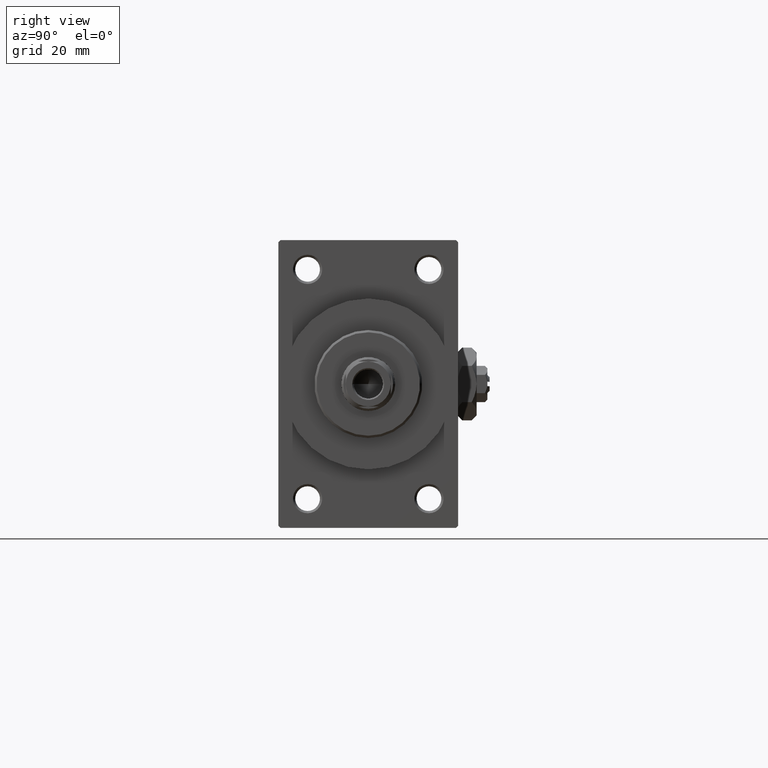
[diagram: clean part render]
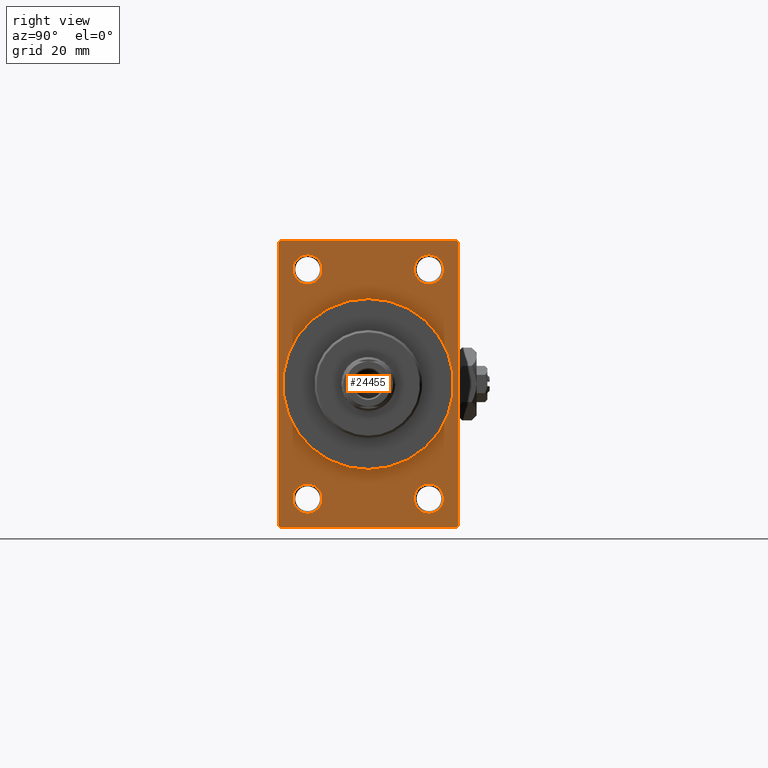
[diagram: same view with one face highlighted and labeled with its STEP entity id]
A machine part, right view. The second image highlights one B-rep face of the part: STEP entity #24455.
In plain terms, the highlighted planar face has unit normal (-1, 0, 0).
Its self-contained STEP definition (entity closure, byte-faithful):
#93 = CARTESIAN_POINT ( 'NONE',  ( 109.0000000000000142, 19.49999999999998579, -32.00000000000000000 ) ) ;
#233 = DIRECTION ( 'NONE',  ( 0.000000000000000000, 0.000000000000000000, -1.000000000000000000 ) ) ;
#847 = AXIS2_PLACEMENT_3D ( 'NONE', #28082, #20176, #4635 ) ;
#910 = ORIENTED_EDGE ( 'NONE', *, *, #6485, .T. ) ;
#1444 = FACE_BOUND ( 'NONE', #31148, .T. ) ;
#1781 = CARTESIAN_POINT ( 'NONE',  ( 109.0000000000000142, 13.49999999999999822, 28.74999999999996803 ) ) ;
#2174 = VERTEX_POINT ( 'NONE', #44598 ) ;
#2771 = AXIS2_PLACEMENT_3D ( 'NONE', #8393, #18525, #30347 ) ;
#2773 = EDGE_CURVE ( 'NONE', #8774, #26428, #27390, .T. ) ;
#3273 = DIRECTION ( 'NONE',  ( -1.000000000000000000, -0.000000000000000000, -0.000000000000000000 ) ) ;
#4097 = ORIENTED_EDGE ( 'NONE', *, *, #9370, .T. ) ;
#4564 = DIRECTION ( 'NONE',  ( 0.000000000000000000, 0.000000000000000000, 1.000000000000000000 ) ) ;
#4635 = DIRECTION ( 'NONE',  ( 0.000000000000000000, 0.000000000000000000, 1.000000000000000000 ) ) ;
#5067 = ORIENTED_EDGE ( 'NONE', *, *, #36040, .T. ) ;
#5396 = ORIENTED_EDGE ( 'NONE', *, *, #31064, .T. ) ;
#5425 = CIRCLE ( 'NONE', #36137, 3.250000000000002665 ) ;
#5559 = LINE ( 'NONE', #31947, #18130 ) ;
#6288 = DIRECTION ( 'NONE',  ( -0.000000000000000000, 0.7071067811865474617, 0.7071067811865474617 ) ) ;
#6423 = ORIENTED_EDGE ( 'NONE', *, *, #33546, .T. ) ;
#6485 = EDGE_CURVE ( 'NONE', #41729, #14216, #40122, .T. ) ;
#6873 = CARTESIAN_POINT ( 'NONE',  ( 109.0000000000000142, -19.49999999999998579, 31.99999999999999289 ) ) ;
#7139 = AXIS2_PLACEMENT_3D ( 'NONE', #27842, #42896, #9092 ) ;
#7163 = CARTESIAN_POINT ( 'NONE',  ( 109.0000000000000142, 0.000000000000000000, 0.000000000000000000 ) ) ;
#7393 = CARTESIAN_POINT ( 'NONE',  ( 109.0000000000000142, 20.00000000000000000, -31.49999999999998579 ) ) ;
#8144 = CARTESIAN_POINT ( 'NONE',  ( 109.0000000000000142, -13.50000000000000178, 25.50000000000000355 ) ) ;
#8262 = CARTESIAN_POINT ( 'NONE',  ( 109.0000000000000142, 13.49999999999999822, -28.75000000000000000 ) ) ;
#8279 = CARTESIAN_POINT ( 'NONE',  ( 109.0000000000000142, 13.49999999999999822, 25.50000000000000355 ) ) ;
#8393 = CARTESIAN_POINT ( 'NONE',  ( 109.0000000000000142, -13.50000000000000533, -25.49999999999999645 ) ) ;
#8774 = VERTEX_POINT ( 'NONE', #28188 ) ;
#8914 = DIRECTION ( 'NONE',  ( 0.000000000000000000, 0.000000000000000000, -1.000000000000000000 ) ) ;
#9036 = VERTEX_POINT ( 'NONE', #32244 ) ;
#9092 = DIRECTION ( 'NONE',  ( 0.000000000000000000, 0.000000000000000000, -1.000000000000000000 ) ) ;
#9370 = EDGE_CURVE ( 'NONE', #27413, #24195, #5559, .T. ) ;
#9398 = CARTESIAN_POINT ( 'NONE',  ( 109.0000000000000142, -20.00000000000000000, 31.49999999999997868 ) ) ;
#9583 = CIRCLE ( 'NONE', #847, 3.250000000000002665 ) ;
#9870 = LINE ( 'NONE', #14517, #10272 ) ;
#9965 = CARTESIAN_POINT ( 'NONE',  ( 109.0000000000000142, 13.49999999999999822, -25.50000000000000000 ) ) ;
#10265 = EDGE_CURVE ( 'NONE', #33577, #20560, #12650, .T. ) ;
#10272 = VECTOR ( 'NONE', #17756, 1000.000000000000000 ) ;
#10680 = DIRECTION ( 'NONE',  ( 0.000000000000000000, 0.000000000000000000, 1.000000000000000000 ) ) ;
#11337 = CARTESIAN_POINT ( 'NONE',  ( 109.0000000000000142, -20.00000000000000000, 31.49999999999997868 ) ) ;
#11471 = VERTEX_POINT ( 'NONE', #23728 ) ;
#11693 = LINE ( 'NONE', #41076, #45871 ) ;
#11746 = EDGE_LOOP ( 'NONE', ( #48314, #29323 ) ) ;
#11811 = ORIENTED_EDGE ( 'NONE', *, *, #23037, .T. ) ;
#12128 = DIRECTION ( 'NONE',  ( 0.000000000000000000, 0.000000000000000000, 1.000000000000000000 ) ) ;
#12578 = ORIENTED_EDGE ( 'NONE', *, *, #2773, .F. ) ;
#12583 = DIRECTION ( 'NONE',  ( 0.000000000000000000, 0.000000000000000000, 1.000000000000000000 ) ) ;
#12650 = LINE ( 'NONE', #32137, #22744 ) ;
#12655 = CIRCLE ( 'NONE', #13479, 3.250000000000002665 ) ;
#13080 = CIRCLE ( 'NONE', #13890, 3.249999999999961364 ) ;
#13097 = CARTESIAN_POINT ( 'NONE',  ( 109.0000000000000142, -20.00000000000000000, 31.99999999999999289 ) ) ;
#13281 = FACE_BOUND ( 'NONE', #11746, .T. ) ;
#13400 = CARTESIAN_POINT ( 'NONE',  ( 109.0000000000000142, 13.49999999999999822, -22.24999999999999645 ) ) ;
#13479 = AXIS2_PLACEMENT_3D ( 'NONE', #8144, #41457, #30580 ) ;
#13532 = CARTESIAN_POINT ( 'NONE',  ( 109.0000000000000142, 0.000000000000000000, 0.000000000000000000 ) ) ;
#13724 = EDGE_CURVE ( 'NONE', #9036, #24195, #9870, .T. ) ;
#13890 = AXIS2_PLACEMENT_3D ( 'NONE', #17283, #47384, #12583 ) ;
#14216 = VERTEX_POINT ( 'NONE', #8262 ) ;
#14236 = DIRECTION ( 'NONE',  ( 0.000000000000000000, -1.000000000000000000, 0.000000000000000000 ) ) ;
#14517 = CARTESIAN_POINT ( 'NONE',  ( 109.0000000000000142, 20.00000000000000000, 32.00000000000000000 ) ) ;
#14690 = EDGE_CURVE ( 'NONE', #29098, #2174, #12655, .T. ) ;
#15539 = AXIS2_PLACEMENT_3D ( 'NONE', #7163, #22679, #233 ) ;
#16279 = EDGE_LOOP ( 'NONE', ( #35047, #6423 ) ) ;
#16494 = PLANE ( 'NONE',  #48009 ) ;
#17283 = CARTESIAN_POINT ( 'NONE',  ( 109.0000000000000142, 13.49999999999999822, 25.50000000000000355 ) ) ;
#17756 = DIRECTION ( 'NONE',  ( 0.000000000000000000, 0.000000000000000000, -1.000000000000000000 ) ) ;
#18065 = VECTOR ( 'NONE', #18981, 1000.000000000000114 ) ;
#18130 = VECTOR ( 'NONE', #6288, 1000.000000000000114 ) ;
#18525 = DIRECTION ( 'NONE',  ( -1.000000000000000000, -0.000000000000000000, -0.000000000000000000 ) ) ;
#18815 = CARTESIAN_POINT ( 'NONE',  ( 109.0000000000000142, -13.50000000000000533, -22.24999999999999289 ) ) ;
#18981 = DIRECTION ( 'NONE',  ( -0.000000000000000000, -0.7071067811865474617, -0.7071067811865474617 ) ) ;
#19613 = VERTEX_POINT ( 'NONE', #6873 ) ;
#20176 = DIRECTION ( 'NONE',  ( -1.000000000000000000, -0.000000000000000000, -0.000000000000000000 ) ) ;
#20198 = FACE_BOUND ( 'NONE', #38910, .T. ) ;
#20560 = VERTEX_POINT ( 'NONE', #39964 ) ;
#20643 = AXIS2_PLACEMENT_3D ( 'NONE', #8279, #30235, #4564 ) ;
#20678 = DIRECTION ( 'NONE',  ( 0.000000000000000000, -0.7071067811865474617, 0.7071067811865474617 ) ) ;
#20697 = DIRECTION ( 'NONE',  ( -1.000000000000000000, 0.000000000000000000, -0.000000000000000000 ) ) ;
#21922 = ORIENTED_EDGE ( 'NONE', *, *, #48033, .T. ) ;
#21954 = AXIS2_PLACEMENT_3D ( 'NONE', #9965, #3273, #10680 ) ;
#22073 = DIRECTION ( 'NONE',  ( 0.000000000000000000, -1.000000000000000000, -1.734723475976807094E-16 ) ) ;
#22200 = AXIS2_PLACEMENT_3D ( 'NONE', #30016, #22359, #45544 ) ;
#22359 = DIRECTION ( 'NONE',  ( -1.000000000000000000, -0.000000000000000000, -0.000000000000000000 ) ) ;
#22679 = DIRECTION ( 'NONE',  ( 1.000000000000000000, 0.000000000000000000, 0.000000000000000000 ) ) ;
#22744 = VECTOR ( 'NONE', #31649, 1000.000000000000000 ) ;
#23037 = EDGE_CURVE ( 'NONE', #23078, #33577, #46658, .T. ) ;
#23078 = VERTEX_POINT ( 'NONE', #9398 ) ;
#23728 = CARTESIAN_POINT ( 'NONE',  ( 109.0000000000000142, 19.49999999999998579, 32.00000000000000000 ) ) ;
#23738 = CARTESIAN_POINT ( 'NONE',  ( 109.0000000000000142, 13.49999999999999822, 22.25000000000004263 ) ) ;
#23963 = VECTOR ( 'NONE', #20678, 1000.000000000000114 ) ;
#23964 = EDGE_CURVE ( 'NONE', #14216, #41729, #5425, .T. ) ;
#24195 = VERTEX_POINT ( 'NONE', #7393 ) ;
#24455 = ADVANCED_FACE ( 'NONE', ( #32278, #13281, #20198, #36225, #1444, #47343 ), #16494, .F. ) ;
#24927 = ORIENTED_EDGE ( 'NONE', *, *, #13724, .F. ) ;
#25132 = EDGE_CURVE ( 'NONE', #19613, #23078, #47714, .T. ) ;
#26428 = VERTEX_POINT ( 'NONE', #43326 ) ;
#26688 = DIRECTION ( 'NONE',  ( -1.000000000000000000, -0.000000000000000000, -0.000000000000000000 ) ) ;
#27188 = EDGE_CURVE ( 'NONE', #27413, #20560, #35735, .T. ) ;
#27390 = CIRCLE ( 'NONE', #15539, 19.00000000000000000 ) ;
#27413 = VERTEX_POINT ( 'NONE', #93 ) ;
#27506 = VERTEX_POINT ( 'NONE', #38582 ) ;
#27842 = CARTESIAN_POINT ( 'NONE',  ( 109.0000000000000142, 0.000000000000000000, 0.000000000000000000 ) ) ;
#28078 = ORIENTED_EDGE ( 'NONE', *, *, #10265, .T. ) ;
#28082 = CARTESIAN_POINT ( 'NONE',  ( 109.0000000000000142, -13.50000000000000178, 25.50000000000000355 ) ) ;
#28188 = CARTESIAN_POINT ( 'NONE',  ( 109.0000000000000142, 2.326828918379970970E-15, -19.00000000000000000 ) ) ;
#28425 = CIRCLE ( 'NONE', #7139, 19.00000000000000000 ) ;
#28595 = DIRECTION ( 'NONE',  ( -0.000000000000000000, 0.000000000000000000, 1.000000000000000000 ) ) ;
#28828 = VECTOR ( 'NONE', #8914, 1000.000000000000000 ) ;
#29098 = VERTEX_POINT ( 'NONE', #39901 ) ;
#29323 = ORIENTED_EDGE ( 'NONE', *, *, #34821, .T. ) ;
#29611 = VERTEX_POINT ( 'NONE', #18815 ) ;
#29703 = VERTEX_POINT ( 'NONE', #23738 ) ;
#30016 = CARTESIAN_POINT ( 'NONE',  ( 109.0000000000000142, -13.50000000000000533, -25.49999999999999645 ) ) ;
#30235 = DIRECTION ( 'NONE',  ( -1.000000000000000000, -0.000000000000000000, -0.000000000000000000 ) ) ;
#30347 = DIRECTION ( 'NONE',  ( 0.000000000000000000, 0.000000000000000000, 1.000000000000000000 ) ) ;
#30580 = DIRECTION ( 'NONE',  ( 0.000000000000000000, 0.000000000000000000, 1.000000000000000000 ) ) ;
#31064 = EDGE_CURVE ( 'NONE', #29703, #46316, #48112, .T. ) ;
#31148 = EDGE_LOOP ( 'NONE', ( #42156, #12578 ) ) ;
#31649 = DIRECTION ( 'NONE',  ( 0.000000000000000000, 0.7071067811865426878, -0.7071067811865524577 ) ) ;
#31947 = CARTESIAN_POINT ( 'NONE',  ( 109.0000000000000142, 20.00000000000000000, -31.49999999999998579 ) ) ;
#32028 = CARTESIAN_POINT ( 'NONE',  ( 109.0000000000000142, 20.00000000000000000, -32.00000000000000000 ) ) ;
#32137 = CARTESIAN_POINT ( 'NONE',  ( 109.0000000000000142, -19.49999999999998579, -32.00000000000000000 ) ) ;
#32244 = CARTESIAN_POINT ( 'NONE',  ( 109.0000000000000142, 20.00000000000000000, 31.49999999999998579 ) ) ;
#32278 = FACE_BOUND ( 'NONE', #16279, .T. ) ;
#32761 = EDGE_CURVE ( 'NONE', #26428, #8774, #28425, .T. ) ;
#33333 = ORIENTED_EDGE ( 'NONE', *, *, #40239, .T. ) ;
#33546 = EDGE_CURVE ( 'NONE', #2174, #29098, #9583, .T. ) ;
#33577 = VERTEX_POINT ( 'NONE', #43864 ) ;
#33736 = EDGE_LOOP ( 'NONE', ( #11811, #28078, #36915, #4097, #24927, #33333, #5067, #34185 ) ) ;
#34185 = ORIENTED_EDGE ( 'NONE', *, *, #25132, .T. ) ;
#34821 = EDGE_CURVE ( 'NONE', #29611, #27506, #37940, .T. ) ;
#35047 = ORIENTED_EDGE ( 'NONE', *, *, #14690, .T. ) ;
#35299 = CARTESIAN_POINT ( 'NONE',  ( 109.0000000000000142, 13.49999999999999822, -25.50000000000000000 ) ) ;
#35735 = LINE ( 'NONE', #32028, #44131 ) ;
#36040 = EDGE_CURVE ( 'NONE', #11471, #19613, #11693, .T. ) ;
#36137 = AXIS2_PLACEMENT_3D ( 'NONE', #35299, #26688, #12128 ) ;
#36206 = CARTESIAN_POINT ( 'NONE',  ( 109.0000000000000142, 19.49999999999998579, 32.00000000000000000 ) ) ;
#36225 = FACE_BOUND ( 'NONE', #47494, .T. ) ;
#36915 = ORIENTED_EDGE ( 'NONE', *, *, #27188, .F. ) ;
#37940 = CIRCLE ( 'NONE', #22200, 3.250000000000002665 ) ;
#38582 = CARTESIAN_POINT ( 'NONE',  ( 109.0000000000000142, -13.50000000000000533, -28.74999999999999645 ) ) ;
#38910 = EDGE_LOOP ( 'NONE', ( #44918, #910 ) ) ;
#39182 = LINE ( 'NONE', #36206, #23963 ) ;
#39901 = CARTESIAN_POINT ( 'NONE',  ( 109.0000000000000142, -13.50000000000000178, 22.25000000000000000 ) ) ;
#39964 = CARTESIAN_POINT ( 'NONE',  ( 109.0000000000000142, -19.49999999999998579, -32.00000000000000000 ) ) ;
#40122 = CIRCLE ( 'NONE', #21954, 3.250000000000002665 ) ;
#40239 = EDGE_CURVE ( 'NONE', #9036, #11471, #39182, .T. ) ;
#40553 = CIRCLE ( 'NONE', #2771, 3.250000000000002665 ) ;
#41076 = CARTESIAN_POINT ( 'NONE',  ( 109.0000000000000142, 20.00000000000000000, 32.00000000000000000 ) ) ;
#41457 = DIRECTION ( 'NONE',  ( -1.000000000000000000, -0.000000000000000000, -0.000000000000000000 ) ) ;
#41729 = VERTEX_POINT ( 'NONE', #13400 ) ;
#42156 = ORIENTED_EDGE ( 'NONE', *, *, #32761, .F. ) ;
#42177 = EDGE_CURVE ( 'NONE', #27506, #29611, #40553, .T. ) ;
#42896 = DIRECTION ( 'NONE',  ( 1.000000000000000000, 0.000000000000000000, 0.000000000000000000 ) ) ;
#43326 = CARTESIAN_POINT ( 'NONE',  ( 109.0000000000000142, 0.000000000000000000, 19.00000000000000000 ) ) ;
#43864 = CARTESIAN_POINT ( 'NONE',  ( 109.0000000000000142, -20.00000000000000000, -31.49999999999997868 ) ) ;
#44131 = VECTOR ( 'NONE', #14236, 1000.000000000000000 ) ;
#44598 = CARTESIAN_POINT ( 'NONE',  ( 109.0000000000000142, -13.50000000000000178, 28.75000000000000355 ) ) ;
#44918 = ORIENTED_EDGE ( 'NONE', *, *, #23964, .T. ) ;
#45544 = DIRECTION ( 'NONE',  ( 0.000000000000000000, 0.000000000000000000, 1.000000000000000000 ) ) ;
#45871 = VECTOR ( 'NONE', #22073, 1000.000000000000000 ) ;
#46316 = VERTEX_POINT ( 'NONE', #1781 ) ;
#46658 = LINE ( 'NONE', #13097, #28828 ) ;
#47343 = FACE_OUTER_BOUND ( 'NONE', #33736, .T. ) ;
#47384 = DIRECTION ( 'NONE',  ( -1.000000000000000000, -0.000000000000000000, -0.000000000000000000 ) ) ;
#47494 = EDGE_LOOP ( 'NONE', ( #5396, #21922 ) ) ;
#47714 = LINE ( 'NONE', #11337, #18065 ) ;
#48009 = AXIS2_PLACEMENT_3D ( 'NONE', #13532, #20697, #28595 ) ;
#48033 = EDGE_CURVE ( 'NONE', #46316, #29703, #13080, .T. ) ;
#48112 = CIRCLE ( 'NONE', #20643, 3.249999999999961364 ) ;
#48314 = ORIENTED_EDGE ( 'NONE', *, *, #42177, .T. ) ;